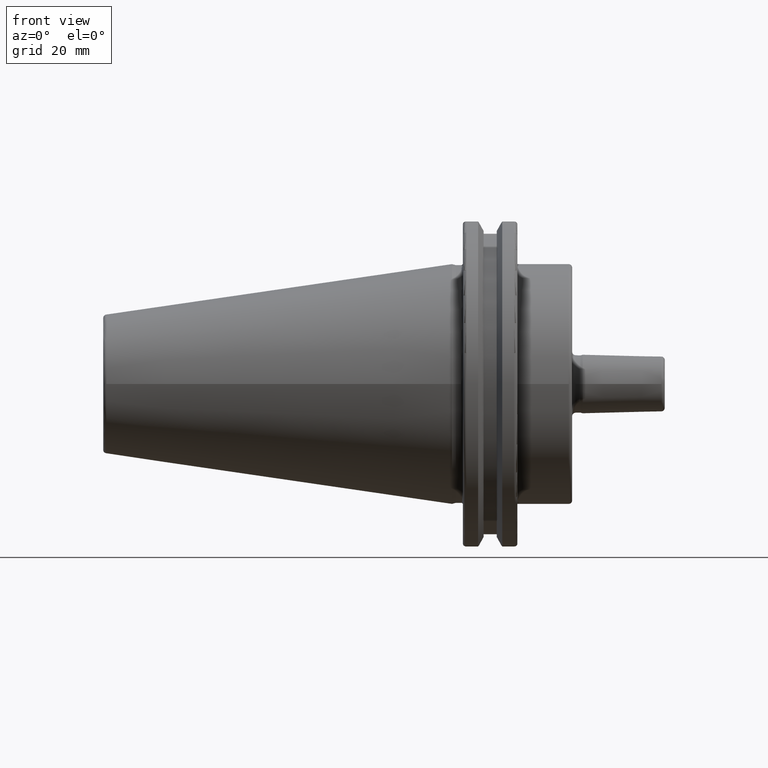
[diagram: clean part render]
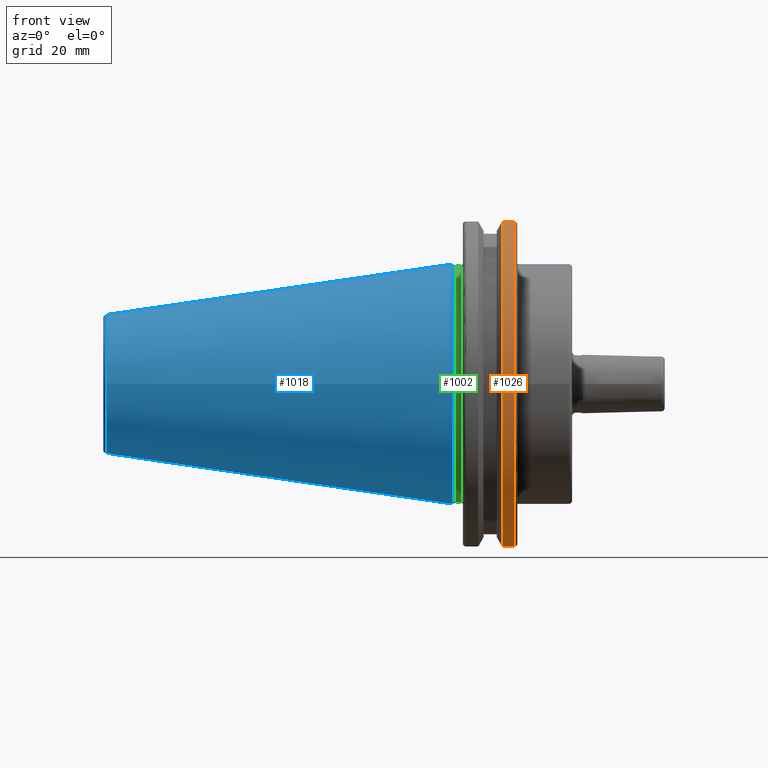
[diagram: same view with three faces highlighted in distinct colors, each labeled with its STEP entity id]
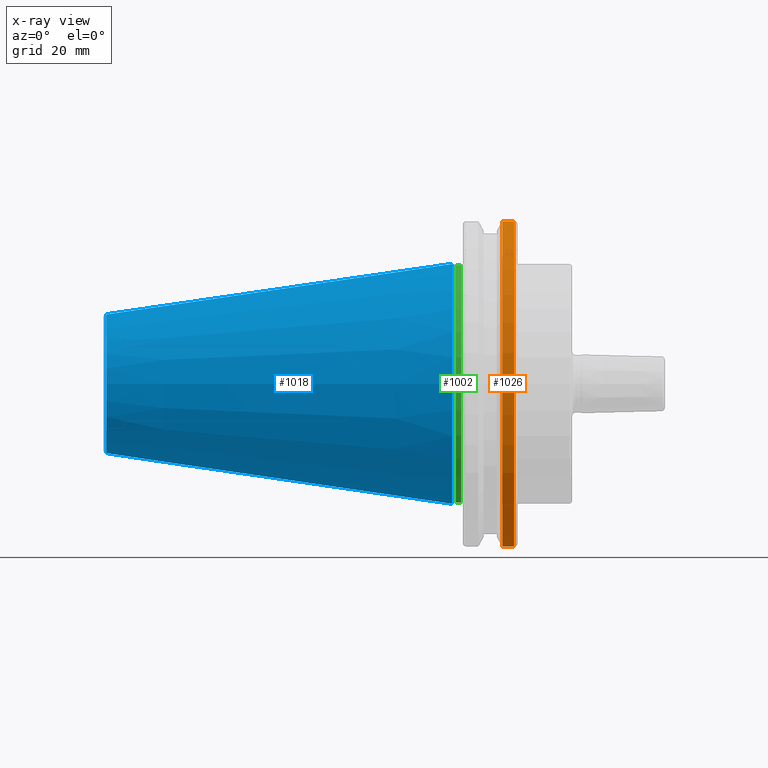
[diagram: x-ray of the same camera — body ghosted, the three highlighted faces saturated]
A machine part, front view with three faces highlighted in distinct colors.
The next image is the same camera in x-ray (body ghosted, the three faces saturated) — at least one of them is partly hidden behind the body in this view.
Their STEP definitions:

[orange] entity #1026 — the highlighted cylindrical surface (partial cylindrical patch) has radius 49.2125 mm, axis along (1, 0, 0).
#138=FACE_OUTER_BOUND('',#202,.T.);
#202=EDGE_LOOP('',(#879,#880,#881,#882));
#287=LINE('',#1855,#356);
#288=LINE('',#1861,#357);
#356=VECTOR('',#1394,10.);
#357=VECTOR('',#1397,10.);
#392=CIRCLE('',#1118,49.2125);
#402=CIRCLE('',#1147,49.2125);
#474=VERTEX_POINT('',#1672);
#475=VERTEX_POINT('',#1681);
#509=VERTEX_POINT('',#1854);
#510=VERTEX_POINT('',#1860);
#590=EDGE_CURVE('',#474,#475,#392,.T.);
#643=EDGE_CURVE('',#475,#509,#287,.T.);
#645=EDGE_CURVE('',#510,#474,#288,.T.);
#646=EDGE_CURVE('',#510,#509,#402,.T.);
#879=ORIENTED_EDGE('',*,*,#590,.F.);
#880=ORIENTED_EDGE('',*,*,#645,.F.);
#881=ORIENTED_EDGE('',*,*,#646,.T.);
#882=ORIENTED_EDGE('',*,*,#643,.F.);
#982=CYLINDRICAL_SURFACE('',#1146,49.2125);
#1026=ADVANCED_FACE('',(#138),#982,.T.);
#1118=AXIS2_PLACEMENT_3D('',#1682,#1312,#1313);
#1146=AXIS2_PLACEMENT_3D('',#1859,#1395,#1396);
#1147=AXIS2_PLACEMENT_3D('',#1862,#1398,#1399);
#1312=DIRECTION('center_axis',(1.,0.,0.));
#1313=DIRECTION('ref_axis',(0.,-1.,1.60812264967664E-16));
#1394=DIRECTION('',(-1.,0.,0.));
#1395=DIRECTION('center_axis',(1.,0.,0.));
#1396=DIRECTION('ref_axis',(0.,-1.,1.22464679914735E-16));
#1397=DIRECTION('',(1.,0.,0.));
#1398=DIRECTION('center_axis',(1.,0.,0.));
#1399=DIRECTION('ref_axis',(0.,0.,-1.));
#1672=CARTESIAN_POINT('',(18.05,-13.4317035994433,47.3440544806494));
#1681=CARTESIAN_POINT('',(18.05,-13.4317035994433,-47.3440544806494));
#1682=CARTESIAN_POINT('Origin',(18.05,0.,0.));
#1854=CARTESIAN_POINT('',(14.6534090340487,-13.4317035994433,-47.3440544806494));
#1855=CARTESIAN_POINT('',(16.8517045170244,-13.4317035994433,-47.3440544806494));
#1859=CARTESIAN_POINT('Origin',(16.8517045170244,0.,0.));
#1860=CARTESIAN_POINT('',(14.6534090340487,-13.4317035994433,47.3440544806494));
#1861=CARTESIAN_POINT('',(16.8517045170244,-13.4317035994433,47.3440544806494));
#1862=CARTESIAN_POINT('Origin',(14.6534090340487,0.,0.));

[blue] entity #1018 — the highlighted conical surface has half-angle 8.297 deg.
#50=CONICAL_SURFACE('',#1137,27.5166666666666,0.14481249823894);
#130=FACE_OUTER_BOUND('',#194,.T.);
#194=EDGE_LOOP('',(#838,#839,#840,#841,#842));
#276=LINE('',#1824,#345);
#345=VECTOR('',#1369,27.5166666666666);
#396=CIRCLE('',#1131,20.233121911427);
#397=CIRCLE('',#1132,20.233121911427);
#401=CIRCLE('',#1138,34.925);
#498=VERTEX_POINT('',#1811);
#499=VERTEX_POINT('',#1812);
#502=VERTEX_POINT('',#1822);
#624=EDGE_CURVE('',#498,#499,#396,.T.);
#625=EDGE_CURVE('',#499,#498,#397,.T.);
#629=EDGE_CURVE('',#502,#502,#401,.T.);
#630=EDGE_CURVE('',#502,#499,#276,.T.);
#838=ORIENTED_EDGE('',*,*,#629,.F.);
#839=ORIENTED_EDGE('',*,*,#630,.T.);
#840=ORIENTED_EDGE('',*,*,#624,.F.);
#841=ORIENTED_EDGE('',*,*,#625,.F.);
#842=ORIENTED_EDGE('',*,*,#630,.F.);
#1018=ADVANCED_FACE('',(#130),#50,.T.);
#1131=AXIS2_PLACEMENT_3D('',#1813,#1353,#1354);
#1132=AXIS2_PLACEMENT_3D('',#1814,#1355,#1356);
#1137=AXIS2_PLACEMENT_3D('',#1821,#1365,#1366);
#1138=AXIS2_PLACEMENT_3D('',#1823,#1367,#1368);
#1353=DIRECTION('center_axis',(-1.,0.,0.));
#1354=DIRECTION('ref_axis',(0.,-1.,3.06161699786838E-17));
#1355=DIRECTION('center_axis',(-1.,0.,0.));
#1356=DIRECTION('ref_axis',(0.,-1.,3.06161699786838E-17));
#1365=DIRECTION('center_axis',(1.,0.,0.));
#1366=DIRECTION('ref_axis',(0.,1.,0.));
#1367=DIRECTION('center_axis',(1.,0.,0.));
#1368=DIRECTION('ref_axis',(0.,0.,-1.));
#1369=DIRECTION('',(-0.989532981063281,0.144306893071729,1.76724974695192E-17));
#1811=CARTESIAN_POINT('',(-100.744306893072,-2.47784279855872E-15,20.233121911427));
#1812=CARTESIAN_POINT('',(-100.744306893072,-20.233121911427,-2.47784279855872E-15));
#1813=CARTESIAN_POINT('Origin',(-100.744306893072,0.,-3.09730349819841E-15));
#1814=CARTESIAN_POINT('Origin',(-100.744306893072,0.,-3.09730349819841E-15));
#1821=CARTESIAN_POINT('Origin',(-50.8,0.,0.));
#1822=CARTESIAN_POINT('',(-8.88178419700125E-15,-34.925,-4.27707894602213E-15));
#1823=CARTESIAN_POINT('Origin',(0.,0.,0.));
#1824=CARTESIAN_POINT('',(-50.8,-27.5166666666666,-3.3698197756538E-15));

[green] entity #1002 — the highlighted cylindrical surface (bore or boss wall) has radius 34.625 mm, axis along (1, 0, 0).
#114=FACE_OUTER_BOUND('',#176,.T.);
#176=EDGE_LOOP('',(#733,#734,#735,#736,#737));
#243=LINE('',#1564,#312);
#312=VECTOR('',#1276,34.625);
#382=CIRCLE('',#1101,34.625);
#385=CIRCLE('',#1104,34.625);
#388=CIRCLE('',#1109,34.625);
#432=VERTEX_POINT('',#1530);
#433=VERTEX_POINT('',#1531);
#447=VERTEX_POINT('',#1563);
#541=EDGE_CURVE('',#432,#433,#382,.T.);
#544=EDGE_CURVE('',#433,#432,#385,.T.);
#557=EDGE_CURVE('',#432,#447,#243,.T.);
#558=EDGE_CURVE('',#447,#447,#388,.T.);
#733=ORIENTED_EDGE('',*,*,#541,.F.);
#734=ORIENTED_EDGE('',*,*,#557,.T.);
#735=ORIENTED_EDGE('',*,*,#558,.T.);
#736=ORIENTED_EDGE('',*,*,#557,.F.);
#737=ORIENTED_EDGE('',*,*,#544,.F.);
#980=CYLINDRICAL_SURFACE('',#1108,34.625);
#1002=ADVANCED_FACE('',(#114),#980,.T.);
#1101=AXIS2_PLACEMENT_3D('',#1532,#1250,#1251);
#1104=AXIS2_PLACEMENT_3D('',#1536,#1256,#1257);
#1108=AXIS2_PLACEMENT_3D('',#1562,#1274,#1275);
#1109=AXIS2_PLACEMENT_3D('',#1565,#1277,#1278);
#1250=DIRECTION('center_axis',(1.,0.,0.));
#1251=DIRECTION('ref_axis',(0.,-1.,1.83697019872103E-16));
#1256=DIRECTION('center_axis',(1.,0.,0.));
#1257=DIRECTION('ref_axis',(0.,-1.,1.83697019872103E-16));
#1274=DIRECTION('center_axis',(1.,0.,0.));
#1275=DIRECTION('ref_axis',(0.,1.,0.));
#1276=DIRECTION('',(-1.,0.,0.));
#1277=DIRECTION('center_axis',(1.,0.,0.));
#1278=DIRECTION('ref_axis',(0.,0.,-1.));
#1530=CARTESIAN_POINT('',(2.675,-34.625,-4.24033954204771E-15));
#1531=CARTESIAN_POINT('',(2.675,-4.24033954204771E-15,34.625));
#1532=CARTESIAN_POINT('Origin',(2.675,0.,0.));
#1536=CARTESIAN_POINT('Origin',(2.675,0.,0.));
#1562=CARTESIAN_POINT('Origin',(2.14730762113533,0.,0.));
#1563=CARTESIAN_POINT('',(1.11961524227064,-34.625,-4.24033954204771E-15));
#1564=CARTESIAN_POINT('',(2.14730762113533,-34.625,-4.24033954204771E-15));
#1565=CARTESIAN_POINT('Origin',(1.11961524227064,0.,0.));